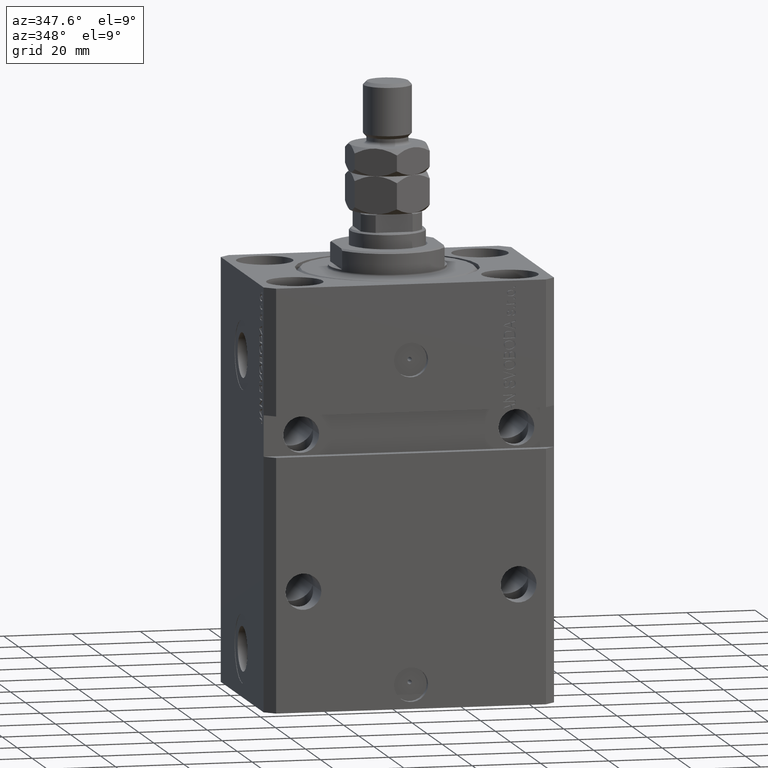
[diagram: clean part render]
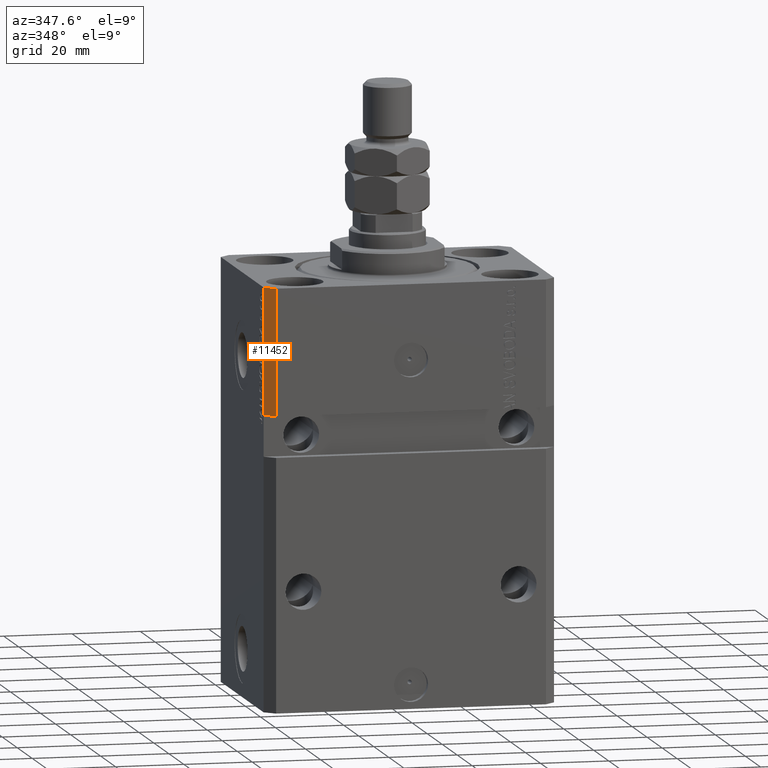
[diagram: same view with one face highlighted and labeled with its STEP entity id]
A machine part, auxiliary view. The second image highlights one B-rep face of the part: STEP entity #11452.
In plain terms, the highlighted planar face has unit normal (-0.7071, -0.7071, 0).
Its self-contained STEP definition (entity closure, byte-faithful):
#367 = VERTEX_POINT ( 'NONE', #18751 ) ;
#1494 = EDGE_CURVE ( 'NONE', #9094, #7294, #26964, .T. ) ;
#1510 = CARTESIAN_POINT ( 'NONE',  ( -39.50000000000000000, -31.50000000000000711, -37.00000000000000711 ) ) ;
#4976 = PLANE ( 'NONE',  #22749 ) ;
#6097 = LINE ( 'NONE', #21194, #48957 ) ;
#6770 = DIRECTION ( 'NONE',  ( 0.7071067811865471286, -0.7071067811865479058, 0.000000000000000000 ) ) ;
#7294 = VERTEX_POINT ( 'NONE', #15116 ) ;
#7857 = DIRECTION ( 'NONE',  ( 0.000000000000000000, 0.000000000000000000, 1.000000000000000000 ) ) ;
#9094 = VERTEX_POINT ( 'NONE', #1510 ) ;
#11151 = CARTESIAN_POINT ( 'NONE',  ( -39.50000000000000711, -31.50000000000000000, -123.0000000000000000 ) ) ;
#11452 = ADVANCED_FACE ( 'NONE', ( #13514 ), #4976, .T. ) ;
#13514 = FACE_OUTER_BOUND ( 'NONE', #28825, .T. ) ;
#15116 = CARTESIAN_POINT ( 'NONE',  ( -39.50000000000000711, -31.50000000000000000, 0.000000000000000000 ) ) ;
#15504 = ORIENTED_EDGE ( 'NONE', *, *, #20879, .F. ) ;
#16310 = DIRECTION ( 'NONE',  ( 0.7071067811865472397, -0.7071067811865479058, 0.000000000000000000 ) ) ;
#18751 = CARTESIAN_POINT ( 'NONE',  ( -42.50000000000000000, -28.50000000000000000, 0.000000000000000000 ) ) ;
#18837 = CARTESIAN_POINT ( 'NONE',  ( -42.50000000000000000, -28.50000000000000000, 0.000000000000000000 ) ) ;
#20509 = CARTESIAN_POINT ( 'NONE',  ( -42.50000000000000000, -28.50000000000000711, -37.00000000000000711 ) ) ;
#20879 = EDGE_CURVE ( 'NONE', #367, #7294, #41664, .T. ) ;
#21194 = CARTESIAN_POINT ( 'NONE',  ( -42.50000000000000000, -28.50000000000000000, -123.0000000000000000 ) ) ;
#22177 = LINE ( 'NONE', #37490, #31648 ) ;
#22497 = VECTOR ( 'NONE', #7857, 1000.000000000000000 ) ;
#22749 = AXIS2_PLACEMENT_3D ( 'NONE', #43633, #36345, #16310 ) ;
#22764 = VECTOR ( 'NONE', #6770, 1000.000000000000000 ) ;
#23109 = VERTEX_POINT ( 'NONE', #20509 ) ;
#23633 = EDGE_CURVE ( 'NONE', #9094, #23109, #22177, .T. ) ;
#26964 = LINE ( 'NONE', #11151, #22497 ) ;
#28257 = ORIENTED_EDGE ( 'NONE', *, *, #1494, .T. ) ;
#28825 = EDGE_LOOP ( 'NONE', ( #30090, #28257, #15504, #40379 ) ) ;
#30090 = ORIENTED_EDGE ( 'NONE', *, *, #23633, .F. ) ;
#31648 = VECTOR ( 'NONE', #40493, 1000.000000000000000 ) ;
#36345 = DIRECTION ( 'NONE',  ( -0.7071067811865479058, -0.7071067811865472397, 0.000000000000000000 ) ) ;
#37490 = CARTESIAN_POINT ( 'NONE',  ( -42.50000000000000711, -28.49999999999999645, -37.00000000000000711 ) ) ;
#40379 = ORIENTED_EDGE ( 'NONE', *, *, #49431, .F. ) ;
#40493 = DIRECTION ( 'NONE',  ( -0.7071067811865472397, 0.7071067811865479058, -5.772398745160932566E-17 ) ) ;
#40732 = DIRECTION ( 'NONE',  ( 0.000000000000000000, 0.000000000000000000, 1.000000000000000000 ) ) ;
#41664 = LINE ( 'NONE', #18837, #22764 ) ;
#43633 = CARTESIAN_POINT ( 'NONE',  ( -42.50000000000000000, -28.50000000000000000, -123.0000000000000000 ) ) ;
#48957 = VECTOR ( 'NONE', #40732, 1000.000000000000000 ) ;
#49431 = EDGE_CURVE ( 'NONE', #23109, #367, #6097, .T. ) ;